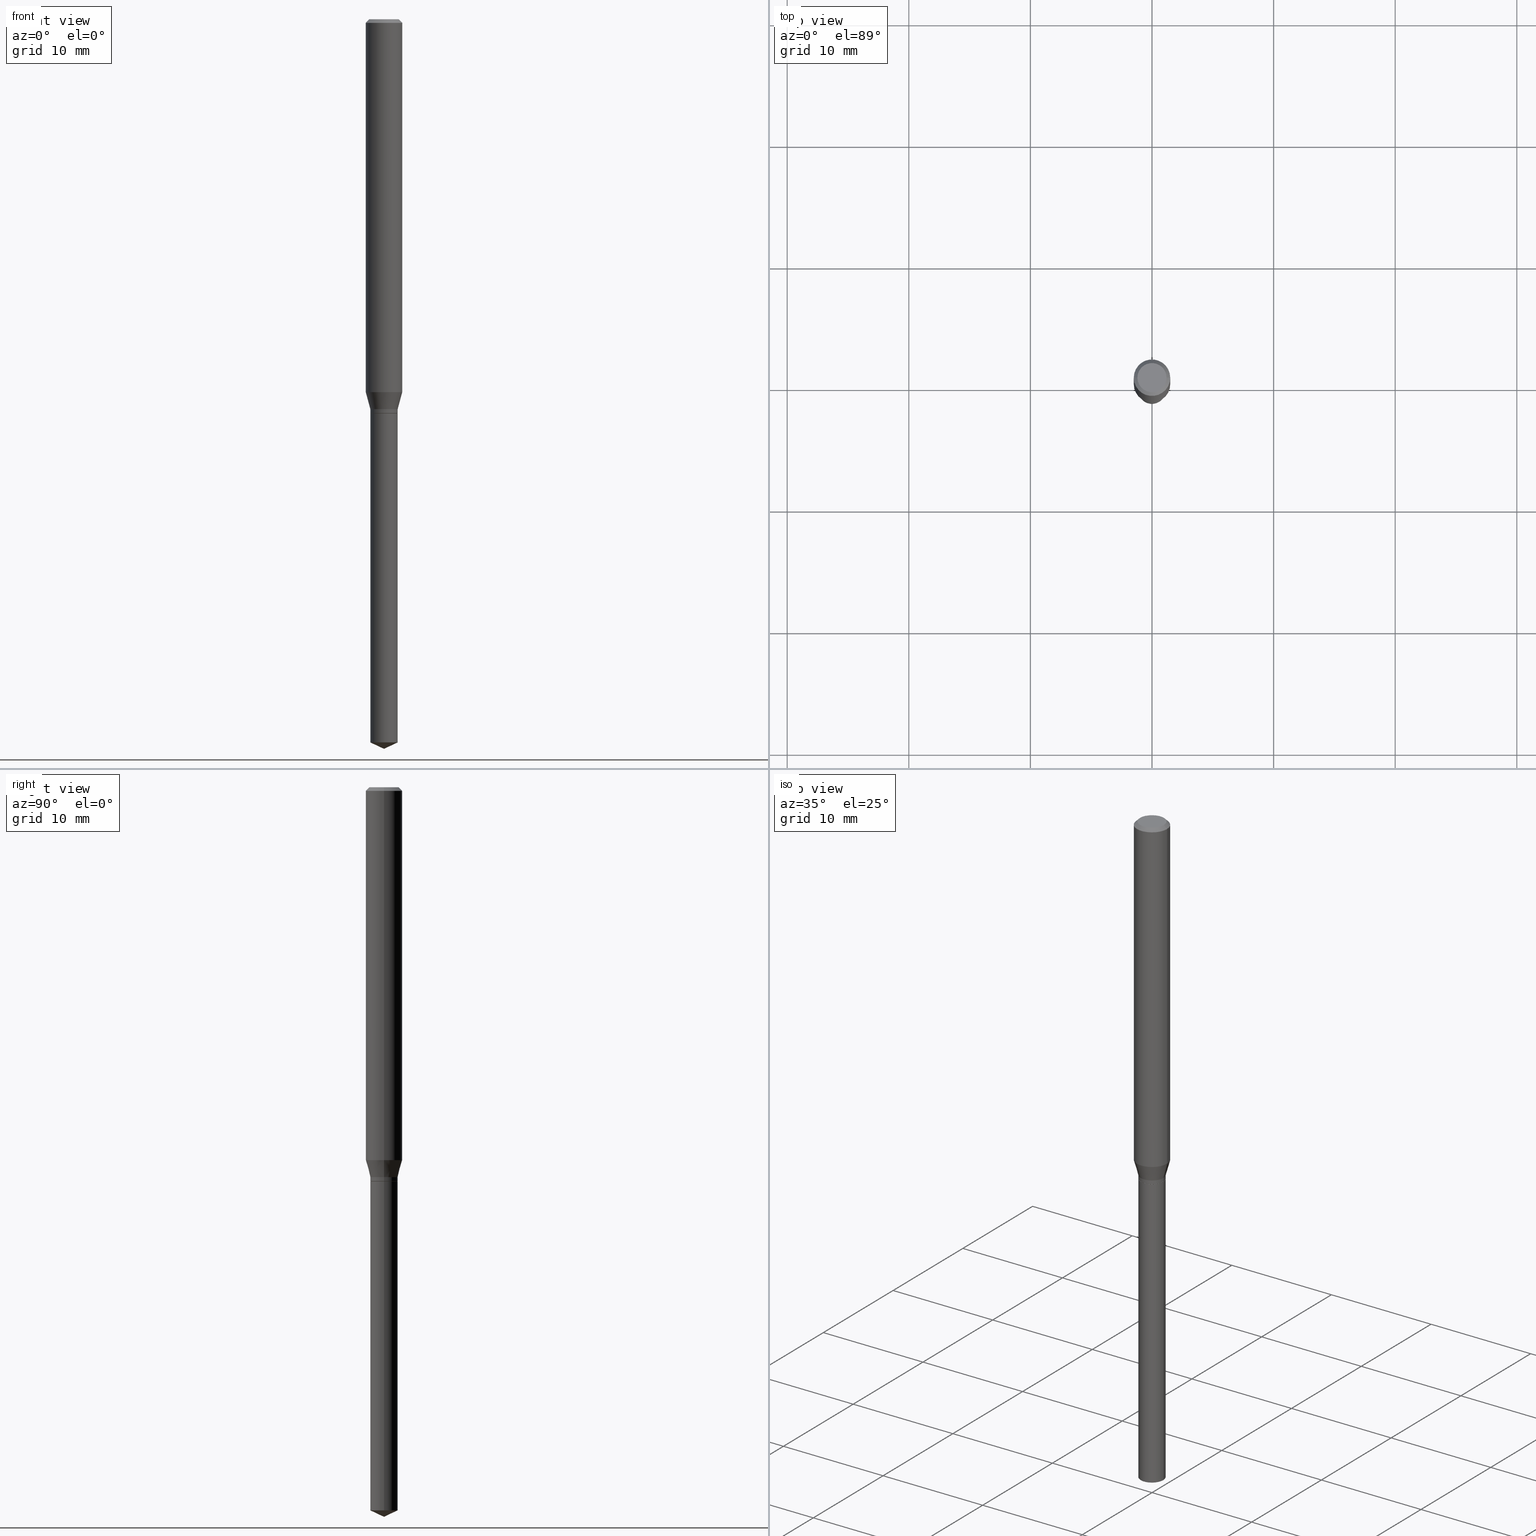
[diagram: canonical four-view strip — front | top / right | iso, engineering-drawing reading convention]
A machine part, canonical four-view strip (front | top / right | iso — engineering-drawing reading convention). The complete STEP part file that produces these views, byte-faithful:
ISO-10303-21;
HEADER;
FILE_DESCRIPTION (( 'STEP AP203' ),
    '1' );
FILE_NAME ('07631.STEP',
    '2024-04-24T00:04:10',
    ( '' ),
    ( '' ),
    'SwSTEP 2.0',
    'SolidWorks 2023',
    '' );
FILE_SCHEMA (( 'CONFIG_CONTROL_DESIGN' ));
ENDSEC;

DATA;
#1 = VECTOR ( 'NONE', #345, 39.37007874015748143 ) ;
#2 = DIRECTION ( 'NONE',  ( -2.445468806185136597E-29, 3.491481338843145583E-15, 1.000000000000000000 ) ) ;
#3 = CARTESIAN_POINT ( 'NONE',  ( 3.119440009169759514E-29, -4.453733595828316609E-15, -1.275599999999999845 ) ) ;
#4 = PRODUCT_RELATED_PRODUCT_CATEGORY ( 'detail', '', ( #349 ) ) ;
#5 = EDGE_CURVE ( 'NONE', #24, #148, #385, .T. ) ;
#6 = ADVANCED_BREP_SHAPE_REPRESENTATION ( '07631', ( #111, #273, #291 ), #382 ) ;
#7 = APPROVAL_ROLE ( '' ) ;
#8 = CARTESIAN_POINT ( 'NONE',  ( -0.04429999999999999910, -4.138963163886592184E-15, -1.275599999999999845 ) ) ;
#9 = CARTESIAN_POINT ( 'NONE',  ( 4.132873053354867254E-48, -5.900647395337818946E-34, -1.690012582823346072E-19 ) ) ;
#10 = DIRECTION ( 'NONE',  ( -2.445468806185136597E-29, 3.491481338843145583E-15, 1.000000000000000000 ) ) ;
#11 = ORIENTED_EDGE ( 'NONE', *, *, #350, .F. ) ;
#12 = VECTOR ( 'NONE', #152, 39.37007874015748143 ) ;
#13 = FACE_OUTER_BOUND ( 'NONE', #170, .T. ) ;
#14 =( LENGTH_UNIT ( ) NAMED_UNIT ( * ) SI_UNIT ( $, .METRE. ) );
#15 = COORDINATED_UNIVERSAL_TIME_OFFSET ( 5, 0, .BEHIND. ) ;
#16 = CARTESIAN_POINT ( 'NONE',  ( 2.952297720010632221E-29, -4.215098704205641953E-15, -1.207252250588358500 ) ) ;
#17 = VERTEX_POINT ( 'NONE', #387 ) ;
#18 = ADVANCED_FACE ( 'NONE', ( #187 ), #44, .T. ) ;
#19 = DIRECTION ( 'NONE',  ( -1.000000000000000000, 6.982962677686266711E-15, 0.000000000000000000 ) ) ;
#20 = LINE ( 'NONE', #162, #130 ) ;
#21 = ADVANCED_FACE ( 'NONE', ( #465 ), #48, .T. ) ;
#22 = CIRCLE ( 'NONE', #185, 0.04430000000000001992 ) ;
#23 = DIRECTION ( 'NONE',  ( 1.000000000000000000, -6.982962677686265922E-15, 4.876176775795935793E-29 ) ) ;
#24 = VERTEX_POINT ( 'NONE', #471 ) ;
#25 = ADVANCED_FACE ( 'NONE', ( #13 ), #129, .T. ) ;
#26 = PLANE ( 'NONE',  #262 ) ;
#27 = ORIENTED_EDGE ( 'NONE', *, *, #114, .T. ) ;
#28 = DIRECTION ( 'NONE',  ( 2.438088387897960049E-29, -3.491481338843145188E-15, -1.000000000000000000 ) ) ;
#29 = ORIENTED_EDGE ( 'NONE', *, *, #140, .T. ) ;
#30 = AXIS2_PLACEMENT_3D ( 'NONE', #106, #250, #408 ) ;
#31 = CARTESIAN_POINT ( 'NONE',  ( -9.050161304213721862E-28, 1.292123180114298356E-13, 37.00787874015748002 ) ) ;
#32 = ORIENTED_EDGE ( 'NONE', *, *, #114, .F. ) ;
#33 = APPLICATION_PROTOCOL_DEFINITION ( 'international standard', 'config_control_design', 1994, #100 ) ;
#34 = CARTESIAN_POINT ( 'NONE',  ( 0.05905000000000007465, -4.123439461173745750E-16, 2.879382386107504074E-30 ) ) ;
#35 = ORIENTED_EDGE ( 'NONE', *, *, #228, .F. ) ;
#36 = AXIS2_PLACEMENT_3D ( 'NONE', #432, #236, #403 ) ;
#37 = DIRECTION ( 'NONE',  ( -2.445468806185136597E-29, 3.491481338843145583E-15, 1.000000000000000000 ) ) ;
#38 = EDGE_CURVE ( 'NONE', #213, #24, #260, .T. ) ;
#39 = AXIS2_PLACEMENT_3D ( 'NONE', #70, #62, #216 ) ;
#40 = FACE_OUTER_BOUND ( 'NONE', #417, .T. ) ;
#41 = DIRECTION ( 'NONE',  ( -2.445468806185136877E-29, 3.491481338843145188E-15, 1.000000000000000000 ) ) ;
#42 = CC_DESIGN_DATE_AND_TIME_ASSIGNMENT ( #78, #397, ( #110 ) ) ;
#43 = CARTESIAN_POINT ( 'NONE',  ( 5.726169315108353450E-29, -8.175452189858550487E-15, -2.341542570743733176 ) ) ;
#44 = CONICAL_SURFACE ( 'NONE', #427, 0.05904999999999999832, 0.7853981633974452814 ) ;
#45 = AXIS2_PLACEMENT_3D ( 'NONE', #365, #257, #410 ) ;
#46 = CARTESIAN_POINT ( 'NONE',  ( 0.05905000000000015098, -4.627442650323016873E-15, -1.207252250588358500 ) ) ;
#47 = ORIENTED_EDGE ( 'NONE', *, *, #112, .T. ) ;
#48 = CYLINDRICAL_SURFACE ( 'NONE', #183, 0.05905000000000007465 ) ;
#49 = CLOSED_SHELL ( 'NONE', ( #252, #18, #21, #178, #25, #105, #342, #376, #53, #474, #215, #324 ) ) ;
#50 = CONICAL_SURFACE ( 'NONE', #79, 84.42940631927322670, 1.134464013796310899 ) ;
#51 = LOCAL_TIME ( 20, 4, 10.00000000000000000, #431 ) ;
#52 = DIRECTION ( 'NONE',  ( 0.2588190451025211281, 1.565188264969622954E-15, 0.9659258262890679791 ) ) ;
#53 = ADVANCED_FACE ( 'NONE', ( #392 ), #461, .T. ) ;
#54 = CALENDAR_DATE ( 2024, 23, 4 ) ;
#55 = CARTESIAN_POINT ( 'NONE',  ( 2.888098660104663766E-31, -4.123439461173779647E-17, -0.01181000000000007044 ) ) ;
#56 = CARTESIAN_POINT ( 'NONE',  ( 3.119440009169759514E-29, -4.453733595828316609E-15, -1.275599999999999845 ) ) ;
#57 = VECTOR ( 'NONE', #238, 39.37007874015748854 ) ;
#58 = CARTESIAN_POINT ( 'NONE',  ( 5.776686413970529753E-29, -8.247577218615279626E-15, -2.362200000000000077 ) ) ;
#59 = CIRCLE ( 'NONE', #407, 0.04429999999999999910 ) ;
#60 = CIRCLE ( 'NONE', #373, 0.04724000000000000421 ) ;
#61 = ORIENTED_EDGE ( 'NONE', *, *, #287, .F. ) ;
#62 = DIRECTION ( 'NONE',  ( -2.445468806185136597E-29, 3.491481338843145583E-15, 1.000000000000000000 ) ) ;
#63 = VERTEX_POINT ( 'NONE', #123 ) ;
#64 = DIRECTION ( 'NONE',  ( -2.445468806185136597E-29, 3.491481338843145583E-15, 1.000000000000000000 ) ) ;
#65 = ORIENTED_EDGE ( 'NONE', *, *, #156, .T. ) ;
#66 = AXIS2_PLACEMENT_3D ( 'NONE', #16, #10, #360 ) ;
#67 = LINE ( 'NONE', #374, #389 ) ;
#68 = VERTEX_POINT ( 'NONE', #90 ) ;
#69 = AXIS2_PLACEMENT_3D ( 'NONE', #3, #457, #115 ) ;
#70 = CARTESIAN_POINT ( 'NONE',  ( 3.119440009169759514E-29, -4.453733595828316609E-15, -1.275599999999999845 ) ) ;
#71 = ORIENTED_EDGE ( 'NONE', *, *, #414, .F. ) ;
#72 = PERSON ( 'UNSPECIFIED', 'UNSPECIFIED', 'UNSPECIFIED', ('UNSPECIFIED'), ('UNSPECIFIED'), ('UNSPECIFIED') ) ;
#73 = LINE ( 'NONE', #184, #1 ) ;
#74 = DIRECTION ( 'NONE',  ( 1.000000000000000000, -6.982962677686266711E-15, 0.000000000000000000 ) ) ;
#75 = CC_DESIGN_PERSON_AND_ORGANIZATION_ASSIGNMENT ( #352, #388, ( #110 ) ) ;
#76 = CARTESIAN_POINT ( 'NONE',  ( 3.118217274766668394E-29, -4.451987855158895895E-15, -1.275100000000000344 ) ) ;
#77 = CARTESIAN_POINT ( 'NONE',  ( 2.888098660104663766E-31, -4.123439461173779647E-17, -0.01181000000000007044 ) ) ;
#78 = DATE_AND_TIME ( #237, #390 ) ;
#79 = AXIS2_PLACEMENT_3D ( 'NONE', #31, #377, #168 ) ;
#80 = LOCAL_TIME ( 20, 4, 10.00000000000000000, #456 ) ;
#81 = DIRECTION ( 'NONE',  ( -2.445468806185136597E-29, 3.491481338843145583E-15, 1.000000000000000000 ) ) ;
#82 = DATE_AND_TIME ( #434, #51 ) ;
#83 = DIRECTION ( 'NONE',  ( 1.000000000000000000, -6.982962677686269077E-15, 0.000000000000000000 ) ) ;
#84 = SHAPE_DEFINITION_REPRESENTATION ( #107, #6 ) ;
#85 = CARTESIAN_POINT ( 'NONE',  ( 5.726169315108353450E-29, -8.175452189858550487E-15, -2.341542570743733176 ) ) ;
#86 = CC_DESIGN_DATE_AND_TIME_ASSIGNMENT ( #82, #280, ( #173 ) ) ;
#87 = DIRECTION ( 'NONE',  ( 0.000000000000000000, 0.000000000000000000, 1.000000000000000000 ) ) ;
#88 = PERSON_AND_ORGANIZATION ( #72, #401 ) ;
#89 = CONICAL_SURFACE ( 'NONE', #233, 0.04430000000000001298, 0.2617993877991498519 ) ;
#90 = CARTESIAN_POINT ( 'NONE',  ( -0.04430000000000001992, -4.114871942648574646E-15, -1.275100000000000344 ) ) ;
#91 = EDGE_CURVE ( 'NONE', #63, #148, #396, .T. ) ;
#92 = CARTESIAN_POINT ( 'NONE',  ( -0.05904999999999999832, -1.708591063942349362E-15, -0.01181000000000007044 ) ) ;
#93 =( CONVERSION_BASED_UNIT ( 'INCH', #442 ) LENGTH_UNIT ( ) NAMED_UNIT ( #421 ) );
#94 = VERTEX_POINT ( 'NONE', #435 ) ;
#95 = DIRECTION ( 'NONE',  ( -2.445468806185136877E-29, 3.491481338843145188E-15, 1.000000000000000000 ) ) ;
#96 = ORIENTED_EDGE ( 'NONE', *, *, #140, .F. ) ;
#97 = AXIS2_PLACEMENT_3D ( 'NONE', #165, #196, #441 ) ;
#98 = DIRECTION ( 'NONE',  ( -2.445468806185136597E-29, 3.491481338843145583E-15, 1.000000000000000000 ) ) ;
#99 = VERTEX_POINT ( 'NONE', #92 ) ;
#100 = APPLICATION_CONTEXT ( 'configuration controlled 3d designs of mechanical parts and assemblies' ) ;
#101 = LINE ( 'NONE', #58, #351 ) ;
#102 = ORIENTED_EDGE ( 'NONE', *, *, #112, .F. ) ;
#103 = CARTESIAN_POINT ( 'NONE',  ( -0.05905000000000015098, -3.795523218739302460E-15, -1.207252250588358500 ) ) ;
#104 = VERTEX_POINT ( 'NONE', #46 ) ;
#105 = ADVANCED_FACE ( 'NONE', ( #245 ), #398, .T. ) ;
#106 = CARTESIAN_POINT ( 'NONE',  ( 3.086915274047497609E-29, -4.407296894021701459E-15, -1.262299999999999756 ) ) ;
#107 = PRODUCT_DEFINITION_SHAPE ( 'NONE', 'NONE',  #173 ) ;
#108 = ORIENTED_EDGE ( 'NONE', *, *, #309, .F. ) ;
#109 = CIRCLE ( 'NONE', #346, 0.05905000000000015098 ) ;
#110 = SECURITY_CLASSIFICATION ( '', '', #319 ) ;
#111 = MANIFOLD_SOLID_BREP ( 'Body-Move/Copy2[1]', #437 ) ;
#112 = EDGE_CURVE ( 'NONE', #366, #104, #354, .T. ) ;
#113 = DIRECTION ( 'NONE',  ( 1.000000000000000000, -6.982962677686267499E-15, 0.000000000000000000 ) ) ;
#114 = EDGE_CURVE ( 'NONE', #220, #104, #214, .T. ) ;
#115 = DIRECTION ( 'NONE',  ( 1.000000000000000000, -6.982962677686257244E-15, 0.000000000000000000 ) ) ;
#116 = ORIENTED_EDGE ( 'NONE', *, *, #350, .T. ) ;
#117 = AXIS2_PLACEMENT_3D ( 'NONE', #55, #439, #19 ) ;
#118 = LINE ( 'NONE', #34, #12 ) ;
#119 = AXIS2_PLACEMENT_3D ( 'NONE', #261, #404, #23 ) ;
#120 = CC_DESIGN_APPROVAL ( #235, ( #110 ) ) ;
#121 = DIRECTION ( 'NONE',  ( -1.000000000000000000, 6.982962677686266711E-15, 0.000000000000000000 ) ) ;
#122 = PERSON_AND_ORGANIZATION ( #72, #401 ) ;
#123 = CARTESIAN_POINT ( 'NONE',  ( 0.04429999999999999910, -4.763078842449818086E-15, -1.275599999999999845 ) ) ;
#124 = AXIS2_PLACEMENT_3D ( 'NONE', #323, #204, #473 ) ;
#125 = EDGE_CURVE ( 'NONE', #220, #99, #394, .T. ) ;
#126 = LINE ( 'NONE', #357, #232 ) ;
#127 = PERSON_AND_ORGANIZATION ( #72, #401 ) ;
#128 = FACE_OUTER_BOUND ( 'NONE', #229, .T. ) ;
#129 = CYLINDRICAL_SURFACE ( 'NONE', #488, 0.04430000000000001992 ) ;
#130 = VECTOR ( 'NONE', #320, 39.37007874015748143 ) ;
#131 = CARTESIAN_POINT ( 'NONE',  ( 0.04430000000000001992, -3.093452466215017723E-16, 2.160146311677600784E-30 ) ) ;
#132 = EDGE_LOOP ( 'NONE', ( #172, #413, #65, #293 ) ) ;
#133 = LINE ( 'NONE', #255, #242 ) ;
#134 = DIRECTION ( 'NONE',  ( -2.445468806185136597E-29, 3.491481338843145583E-15, 1.000000000000000000 ) ) ;
#135 = EDGE_LOOP ( 'NONE', ( #61, #206, #449, #199 ) ) ;
#136 = EDGE_CURVE ( 'NONE', #148, #63, #191, .T. ) ;
#137 = FACE_OUTER_BOUND ( 'NONE', #251, .T. ) ;
#138 = CONICAL_SURFACE ( 'NONE', #30, 0.04430000000000001298, 0.2617993877991498519 ) ;
#139 = EDGE_LOOP ( 'NONE', ( #341, #270 ) ) ;
#140 = EDGE_CURVE ( 'NONE', #305, #24, #322, .T. ) ;
#141 = DIRECTION ( 'NONE',  ( 0.7071067811865453523, -7.319954787623248157E-15, -0.7071067811865496822 ) ) ;
#142 = VERTEX_POINT ( 'NONE', #201 ) ;
#143 = DIRECTION ( 'NONE',  ( 1.000000000000000000, -6.982962677686266711E-15, 0.000000000000000000 ) ) ;
#144 = UNCERTAINTY_MEASURE_WITH_UNIT (LENGTH_MEASURE( 1.000000000000000082E-05 ), #93, 'distance_accuracy_value', 'NONE');
#145 = EDGE_LOOP ( 'NONE', ( #197, #27, #254, #263 ) ) ;
#146 = ADVANCED_FACE ( 'NONE', ( #313 ), #362, .T. ) ;
#147 = DIRECTION ( 'NONE',  ( 1.000000000000000000, -6.982962677686269077E-15, 0.000000000000000000 ) ) ;
#148 = VERTEX_POINT ( 'NONE', #274 ) ;
#149 = AXIS2_PLACEMENT_3D ( 'NONE', #460, #188, #419 ) ;
#150 = APPROVAL_PERSON_ORGANIZATION ( #122, #329, #195 ) ;
#151 = APPROVAL_ROLE ( '' ) ;
#152 = DIRECTION ( 'NONE',  ( -2.445468806185136877E-29, 3.491481338843145188E-15, 1.000000000000000000 ) ) ;
#153 = CARTESIAN_POINT ( 'NONE',  ( -9.050161304213721862E-28, 1.292123180114298356E-13, 37.00787874015748002 ) ) ;
#154 = CIRCLE ( 'NONE', #327, 0.04430000000000001298 ) ;
#155 = CC_DESIGN_APPROVAL ( #329, ( #334 ) ) ;
#156 = EDGE_CURVE ( 'NONE', #490, #366, #430, .T. ) ;
#157 = DIRECTION ( 'NONE',  ( 1.000000000000000000, -6.982962677686266711E-15, 4.876176775795936353E-29 ) ) ;
#158 = EDGE_CURVE ( 'NONE', #142, #490, #126, .T. ) ;
#159 = AXIS2_PLACEMENT_3D ( 'NONE', #210, #98, #448 ) ;
#160 = APPROVAL_PERSON_ORGANIZATION ( #223, #337, #151 ) ;
#161 = PERSON_AND_ORGANIZATION ( #72, #401 ) ;
#162 = CARTESIAN_POINT ( 'NONE',  ( -0.04379999999999999866, -4.142515877565392294E-15, -1.275599999999999845 ) ) ;
#163 = EDGE_LOOP ( 'NONE', ( #463, #256, #35, #443 ) ) ;
#164 = EDGE_CURVE ( 'NONE', #484, #68, #20, .T. ) ;
#165 = CARTESIAN_POINT ( 'NONE',  ( 0.000000000000000000, 0.000000000000000000, 0.000000000000000000 ) ) ;
#166 = DIRECTION ( 'NONE',  ( -1.000000000000000000, 6.982962677686265922E-15, -4.876176775795935793E-29 ) ) ;
#167 = CARTESIAN_POINT ( 'NONE',  ( 0.000000000000000000, 0.000000000000000000, 0.000000000000000000 ) ) ;
#168 = DIRECTION ( 'NONE',  ( 1.000000000000000000, -6.982962677686267499E-15, 0.000000000000000000 ) ) ;
#169 = FACE_OUTER_BOUND ( 'NONE', #139, .T. ) ;
#170 = EDGE_LOOP ( 'NONE', ( #425, #406, #71, #211 ) ) ;
#171 = CARTESIAN_POINT ( 'NONE',  ( 3.119440009169759514E-29, -4.453733595828316609E-15, -1.275599999999999845 ) ) ;
#172 = ORIENTED_EDGE ( 'NONE', *, *, #321, .F. ) ;
#173 = PRODUCT_DEFINITION ( 'UNKNOWN', '', #334, #176 ) ;
#174 = DIRECTION ( 'NONE',  ( -2.445468806185136597E-29, 3.491481338843145583E-15, 1.000000000000000000 ) ) ;
#175 = CIRCLE ( 'NONE', #45, 0.05904999999999999832 ) ;
#176 = DESIGN_CONTEXT ( 'detailed design', #100, 'design' ) ;
#177 = VERTEX_POINT ( 'NONE', #469 ) ;
#178 = ADVANCED_FACE ( 'NONE', ( #128 ), #138, .T. ) ;
#179 = FACE_OUTER_BOUND ( 'NONE', #355, .T. ) ;
#180 = ORIENTED_EDGE ( 'NONE', *, *, #259, .F. ) ;
#181 = LINE ( 'NONE', #224, #303 ) ;
#182 = ORIENTED_EDGE ( 'NONE', *, *, #91, .F. ) ;
#183 = AXIS2_PLACEMENT_3D ( 'NONE', #167, #247, #157 ) ;
#184 = CARTESIAN_POINT ( 'NONE',  ( 0.04429999999999999910, -4.763078842449818086E-15, -1.275599999999999845 ) ) ;
#185 = AXIS2_PLACEMENT_3D ( 'NONE', #412, #64, #253 ) ;
#186 = DIRECTION ( 'NONE',  ( -2.445468806185136597E-29, 3.491481338843145583E-15, 1.000000000000000000 ) ) ;
#187 = FACE_OUTER_BOUND ( 'NONE', #290, .T. ) ;
#188 = DIRECTION ( 'NONE',  ( -2.445468806185136597E-29, 3.491481338843145583E-15, 1.000000000000000000 ) ) ;
#189 = MECHANICAL_CONTEXT ( 'NONE', #367, 'mechanical' ) ;
#190 = VECTOR ( 'NONE', #41, 39.37007874015748143 ) ;
#191 = CIRCLE ( 'NONE', #381, 0.04429999999999999910 ) ;
#192 = CIRCLE ( 'NONE', #159, 0.05904999999999999832 ) ;
#193 = PERSON_AND_ORGANIZATION_ROLE ( 'creator' ) ;
#194 = EDGE_CURVE ( 'NONE', #94, #17, #60, .T. ) ;
#195 = APPROVAL_ROLE ( '' ) ;
#196 = DIRECTION ( 'NONE',  ( -2.445468806185136597E-29, 3.491481338843145583E-15, 1.000000000000000000 ) ) ;
#197 = ORIENTED_EDGE ( 'NONE', *, *, #125, .F. ) ;
#198 = DIRECTION ( 'NONE',  ( -2.445468806185136597E-29, 3.491481338843145583E-15, 1.000000000000000000 ) ) ;
#199 = ORIENTED_EDGE ( 'NONE', *, *, #295, .T. ) ;
#200 = APPROVAL_STATUS ( 'not_yet_approved' ) ;
#201 = CARTESIAN_POINT ( 'NONE',  ( 0.04379999999999999866, -4.759587361110974290E-15, -1.275599999999999845 ) ) ;
#202 = ADVANCED_FACE ( 'NONE', ( #137 ), #368, .T. ) ;
#203 = DIRECTION ( 'NONE',  ( -2.445468806185136877E-29, 3.491481338843145188E-15, 1.000000000000000000 ) ) ;
#204 = DIRECTION ( 'NONE',  ( -2.445468806185136597E-29, 3.491481338843145583E-15, 1.000000000000000000 ) ) ;
#205 = AXIS2_PLACEMENT_3D ( 'NONE', #85, #81, #363 ) ;
#206 = ORIENTED_EDGE ( 'NONE', *, *, #418, .F. ) ;
#207 = AXIS2_PLACEMENT_3D ( 'NONE', #288, #134, #338 ) ;
#208 = FACE_OUTER_BOUND ( 'NONE', #266, .T. ) ;
#209 = ORIENTED_EDGE ( 'NONE', *, *, #158, .F. ) ;
#210 = CARTESIAN_POINT ( 'NONE',  ( 2.888098660104663766E-31, -4.123439461173779647E-17, -0.01181000000000007044 ) ) ;
#211 = ORIENTED_EDGE ( 'NONE', *, *, #156, .F. ) ;
#212 = CARTESIAN_POINT ( 'NONE',  ( 5.776686413970529753E-29, -8.247577218615279626E-15, -2.362200000000000077 ) ) ;
#213 = VERTEX_POINT ( 'NONE', #446 ) ;
#214 = CIRCLE ( 'NONE', #66, 0.05905000000000015098 ) ;
#215 = ADVANCED_FACE ( 'NONE', ( #292 ), #450, .F. ) ;
#216 = DIRECTION ( 'NONE',  ( 1.000000000000000000, -6.982962677686257244E-15, 0.000000000000000000 ) ) ;
#217 = CIRCLE ( 'NONE', #225, 0.04430000000000001298 ) ;
#218 = ORIENTED_EDGE ( 'NONE', *, *, #38, .T. ) ;
#219 = DIRECTION ( 'NONE',  ( 0.9063077870366484934, -4.853149677051359068E-15, 0.4226182617407023834 ) ) ;
#220 = VERTEX_POINT ( 'NONE', #103 ) ;
#221 = CALENDAR_DATE ( 2024, 23, 4 ) ;
#222 = DIRECTION ( 'NONE',  ( -2.445468806185136597E-29, 3.491481338843145583E-15, 1.000000000000000000 ) ) ;
#223 = PERSON_AND_ORGANIZATION ( #72, #401 ) ;
#224 = CARTESIAN_POINT ( 'NONE',  ( -0.05904999999999999832, 3.711095515056362547E-16, -0.01181000000000007044 ) ) ;
#225 = AXIS2_PLACEMENT_3D ( 'NONE', #307, #37, #74 ) ;
#226 = ORIENTED_EDGE ( 'NONE', *, *, #228, .T. ) ;
#227 = CARTESIAN_POINT ( 'NONE',  ( 0.000000000000000000, 0.000000000000000000, 0.000000000000000000 ) ) ;
#228 = EDGE_CURVE ( 'NONE', #459, #99, #192, .T. ) ;
#229 = EDGE_LOOP ( 'NONE', ( #331, #339, #108, #102 ) ) ;
#230 = EDGE_CURVE ( 'NONE', #177, #366, #154, .T. ) ;
#231 = APPROVAL_DATE_TIME ( #391, #235 ) ;
#232 = VECTOR ( 'NONE', #276, 39.37007874015748143 ) ;
#233 = AXIS2_PLACEMENT_3D ( 'NONE', #458, #267, #302 ) ;
#234 = PERSON_AND_ORGANIZATION ( #72, #401 ) ;
#235 = APPROVAL ( #312, 'UNSPECIFIED' ) ;
#236 = DIRECTION ( 'NONE',  ( -2.445468806185136597E-29, 3.491481338843145583E-15, 1.000000000000000000 ) ) ;
#237 = CALENDAR_DATE ( 2024, 23, 4 ) ;
#238 = DIRECTION ( 'NONE',  ( -0.9063077870366484934, 7.915267918739014631E-15, 0.4226182617407023834 ) ) ;
#239 = CARTESIAN_POINT ( 'NONE',  ( 0.04430000000000001992, -4.761333101780398160E-15, -1.275100000000000344 ) ) ;
#240 = ORIENTED_EDGE ( 'NONE', *, *, #249, .F. ) ;
#241 = CARTESIAN_POINT ( 'NONE',  ( 0.000000000000000000, 0.000000000000000000, 0.000000000000000000 ) ) ;
#242 = VECTOR ( 'NONE', #141, 39.37007874015748143 ) ;
#243 = APPROVAL_PERSON_ORGANIZATION ( #88, #235, #7 ) ;
#244 = APPROVAL_DATE_TIME ( #468, #329 ) ;
#245 = FACE_OUTER_BOUND ( 'NONE', #132, .T. ) ;
#246 = CC_DESIGN_PERSON_AND_ORGANIZATION_ASSIGNMENT ( #161, #438, ( #334 ) ) ;
#247 = DIRECTION ( 'NONE',  ( -2.445468806185136597E-29, 3.491481338843145583E-15, 1.000000000000000000 ) ) ;
#248 = ORIENTED_EDGE ( 'NONE', *, *, #158, .T. ) ;
#249 = EDGE_CURVE ( 'NONE', #305, #213, #101, .T. ) ;
#250 = DIRECTION ( 'NONE',  ( -2.445468806185136597E-29, 3.491481338843145583E-15, 1.000000000000000000 ) ) ;
#251 = EDGE_LOOP ( 'NONE', ( #218, #369, #182, #299 ) ) ;
#252 = ADVANCED_FACE ( 'NONE', ( #208 ), #344, .T. ) ;
#253 = DIRECTION ( 'NONE',  ( 1.000000000000000000, -6.982962677686265922E-15, 0.000000000000000000 ) ) ;
#254 = ORIENTED_EDGE ( 'NONE', *, *, #361, .T. ) ;
#255 = CARTESIAN_POINT ( 'NONE',  ( 0.05904999999999999832, -4.463468013801466955E-16, -0.01181000000000007044 ) ) ;
#256 = ORIENTED_EDGE ( 'NONE', *, *, #125, .T. ) ;
#257 = DIRECTION ( 'NONE',  ( -2.445468806185136597E-29, 3.491481338843145583E-15, 1.000000000000000000 ) ) ;
#258 = ORIENTED_EDGE ( 'NONE', *, *, #249, .T. ) ;
#259 = EDGE_CURVE ( 'NONE', #484, #142, #475, .T. ) ;
#260 = CIRCLE ( 'NONE', #205, 0.04429999999999999910 ) ;
#261 = CARTESIAN_POINT ( 'NONE',  ( 3.119440009169759514E-29, -4.453733595828316609E-15, -1.275599999999999845 ) ) ;
#262 = AXIS2_PLACEMENT_3D ( 'NONE', #171, #28, #481 ) ;
#263 = ORIENTED_EDGE ( 'NONE', *, *, #295, .F. ) ;
#264 = CARTESIAN_POINT ( 'NONE',  ( 0.04430000000000001298, -4.716642140643203724E-15, -1.262299999999999756 ) ) ;
#265 = DIRECTION ( 'NONE',  ( -0.7071067811865453523, 2.468850131082234184E-15, -0.7071067811865496822 ) ) ;
#266 = EDGE_LOOP ( 'NONE', ( #116, #333, #378, #209 ) ) ;
#267 = DIRECTION ( 'NONE',  ( -2.445468806185136597E-29, 3.491481338843145583E-15, 1.000000000000000000 ) ) ;
#268 = ADVANCED_FACE ( 'NONE', ( #169 ), #26, .F. ) ;
#269 = CONICAL_SURFACE ( 'NONE', #316, 84.42940631927322670, 1.134464013796310899 ) ;
#270 = ORIENTED_EDGE ( 'NONE', *, *, #136, .T. ) ;
#271 = ADVANCED_FACE ( 'NONE', ( #330 ), #50, .T. ) ;
#272 = COORDINATED_UNIVERSAL_TIME_OFFSET ( 5, 0, .BEHIND. ) ;
#273 = MANIFOLD_SOLID_BREP ( 'Body-Move/Copy2[2]', #49 ) ;
#274 = CARTESIAN_POINT ( 'NONE',  ( -0.04429999999999999910, -5.999822460901709912E-15, -1.275599999999999845 ) ) ;
#275 = CIRCLE ( 'NONE', #283, 0.04430000000000001992 ) ;
#276 = DIRECTION ( 'NONE',  ( 0.7071067811868312347, -2.468850131085228700E-15, 0.7071067811862637997 ) ) ;
#277 = PERSON_AND_ORGANIZATION_ROLE ( 'creator' ) ;
#278 = DIRECTION ( 'NONE',  ( -2.445468806185136597E-29, 3.491481338843145583E-15, 1.000000000000000000 ) ) ;
#279 = CARTESIAN_POINT ( 'NONE',  ( 0.000000000000000000, 0.000000000000000000, 0.000000000000000000 ) ) ;
#280 = DATE_TIME_ROLE ( 'creation_date' ) ;
#281 = DIRECTION ( 'NONE',  ( 1.000000000000000000, -6.982962677686267499E-15, 4.876176775795936353E-29 ) ) ;
#282 =( NAMED_UNIT ( * ) PLANE_ANGLE_UNIT ( ) SI_UNIT ( $, .RADIAN. ) );
#283 = AXIS2_PLACEMENT_3D ( 'NONE', #76, #2, #386 ) ;
#284 = DIRECTION ( 'NONE',  ( -2.445468806185136877E-29, 3.491481338843145188E-15, 1.000000000000000000 ) ) ;
#285 = FACE_OUTER_BOUND ( 'NONE', #359, .T. ) ;
#286 = ORIENTED_EDGE ( 'NONE', *, *, #470, .F. ) ;
#287 = EDGE_CURVE ( 'NONE', #94, #459, #133, .T. ) ;
#288 = CARTESIAN_POINT ( 'NONE',  ( 3.119440009169759514E-29, -4.453733595828316609E-15, -1.275599999999999845 ) ) ;
#289 = DIRECTION ( 'NONE',  ( -2.445468806185136597E-29, 3.491481338843145583E-15, 1.000000000000000000 ) ) ;
#290 = EDGE_LOOP ( 'NONE', ( #393, #296, #226, #482 ) ) ;
#291 = AXIS2_PLACEMENT_3D ( 'NONE', #279, #87, #325 ) ;
#292 = FACE_OUTER_BOUND ( 'NONE', #353, .T. ) ;
#293 = ORIENTED_EDGE ( 'NONE', *, *, #230, .F. ) ;
#294 = DIRECTION ( 'NONE',  ( -2.445468806185136597E-29, 3.491481338843145583E-15, 1.000000000000000000 ) ) ;
#295 = EDGE_CURVE ( 'NONE', #99, #459, #175, .T. ) ;
#296 = ORIENTED_EDGE ( 'NONE', *, *, #287, .T. ) ;
#297 = PERSON_AND_ORGANIZATION_ROLE ( 'design_owner' ) ;
#298 = DIRECTION ( 'NONE',  ( -2.445468806185136597E-29, 3.491481338843145583E-15, 1.000000000000000000 ) ) ;
#299 = ORIENTED_EDGE ( 'NONE', *, *, #452, .F. ) ;
#300 = EDGE_CURVE ( 'NONE', #68, #490, #22, .T. ) ;
#301 = APPROVAL_STATUS ( 'not_yet_approved' ) ;
#302 = DIRECTION ( 'NONE',  ( 1.000000000000000000, -6.982962677686266711E-15, 0.000000000000000000 ) ) ;
#303 = VECTOR ( 'NONE', #265, 39.37007874015748143 ) ;
#304 = LOCAL_TIME ( 20, 4, 10.00000000000000000, #15 ) ;
#305 = VERTEX_POINT ( 'NONE', #212 ) ;
#306 = LINE ( 'NONE', #489, #429 ) ;
#307 = CARTESIAN_POINT ( 'NONE',  ( 3.086915274047497609E-29, -4.407296894021701459E-15, -1.262299999999999756 ) ) ;
#308 = VECTOR ( 'NONE', #52, 39.37007874015748854 ) ;
#309 = EDGE_CURVE ( 'NONE', #104, #220, #109, .T. ) ;
#310 = DIRECTION ( 'NONE',  ( 2.445468806185136597E-29, -3.491481338843145583E-15, -1.000000000000000000 ) ) ;
#311 = CC_DESIGN_APPROVAL ( #337, ( #173 ) ) ;
#312 = APPROVAL_STATUS ( 'not_yet_approved' ) ;
#313 = FACE_OUTER_BOUND ( 'NONE', #479, .T. ) ;
#314 = COORDINATED_UNIVERSAL_TIME_OFFSET ( 5, 0, .BEHIND. ) ;
#315 = CARTESIAN_POINT ( 'NONE',  ( -0.05905000000000007465, 4.195754854663396902E-16, -2.904631170795525395E-30 ) ) ;
#316 = AXIS2_PLACEMENT_3D ( 'NONE', #153, #186, #113 ) ;
#317 = PLANE ( 'NONE',  #466 ) ;
#318 = LOCAL_TIME ( 20, 4, 10.00000000000000000, #272 ) ;
#319 = SECURITY_CLASSIFICATION_LEVEL ( 'unclassified' ) ;
#320 = DIRECTION ( 'NONE',  ( -0.7071067811868312347, 7.493145998871379679E-15, 0.7071067811862637997 ) ) ;
#321 = EDGE_CURVE ( 'NONE', #68, #177, #67, .T. ) ;
#322 = LINE ( 'NONE', #467, #57 ) ;
#323 = CARTESIAN_POINT ( 'NONE',  ( 3.119440009169759514E-29, -4.453733595828316609E-15, -1.275599999999999845 ) ) ;
#324 = ADVANCED_FACE ( 'NONE', ( #179 ), #462, .T. ) ;
#325 = DIRECTION ( 'NONE',  ( 1.000000000000000000, 0.000000000000000000, 0.000000000000000000 ) ) ;
#326 = ORIENTED_EDGE ( 'NONE', *, *, #418, .T. ) ;
#327 = AXIS2_PLACEMENT_3D ( 'NONE', #416, #174, #143 ) ;
#328 = DIRECTION ( 'NONE',  ( 1.000000000000000000, -6.982962677686269077E-15, 0.000000000000000000 ) ) ;
#329 = APPROVAL ( #200, 'UNSPECIFIED' ) ;
#330 = FACE_OUTER_BOUND ( 'NONE', #486, .T. ) ;
#331 = ORIENTED_EDGE ( 'NONE', *, *, #414, .T. ) ;
#332 = DIRECTION ( 'NONE',  ( 1.000000000000000000, -6.982962677686266711E-15, 4.876185090822587894E-29 ) ) ;
#333 = ORIENTED_EDGE ( 'NONE', *, *, #164, .T. ) ;
#334 = PRODUCT_DEFINITION_FORMATION_WITH_SPECIFIED_SOURCE ( 'ANY', '', #349, .NOT_KNOWN. ) ;
#335 = DIRECTION ( 'NONE',  ( -2.445468806185136597E-29, 3.491481338843145583E-15, 1.000000000000000000 ) ) ;
#336 = EDGE_LOOP ( 'NONE', ( #375, #371, #47, #32 ) ) ;
#337 = APPROVAL ( #301, 'UNSPECIFIED' ) ;
#338 = DIRECTION ( 'NONE',  ( 1.000000000000000000, -6.982962677686257244E-15, 0.000000000000000000 ) ) ;
#339 = ORIENTED_EDGE ( 'NONE', *, *, #445, .T. ) ;
#340 = DIRECTION ( 'NONE',  ( -2.445468806185136597E-29, 3.491481338843145583E-15, 1.000000000000000000 ) ) ;
#341 = ORIENTED_EDGE ( 'NONE', *, *, #91, .T. ) ;
#342 = ADVANCED_FACE ( 'NONE', ( #485 ), #89, .T. ) ;
#343 = VECTOR ( 'NONE', #203, 39.37007874015748143 ) ;
#344 = CONICAL_SURFACE ( 'NONE', #39, 0.04379999999999999866, 0.7853981633978495136 ) ;
#345 = DIRECTION ( 'NONE',  ( -2.445468806185136877E-29, 3.491481338843145188E-15, 1.000000000000000000 ) ) ;
#346 = AXIS2_PLACEMENT_3D ( 'NONE', #478, #335, #370 ) ;
#347 = ORIENTED_EDGE ( 'NONE', *, *, #164, .F. ) ;
#348 = DIRECTION ( 'NONE',  ( 1.000000000000000000, -6.982962677686266711E-15, 4.876176775795936353E-29 ) ) ;
#349 = PRODUCT ( '07631', '07631', '', ( #189 ) ) ;
#350 = EDGE_CURVE ( 'NONE', #142, #484, #455, .T. ) ;
#351 = VECTOR ( 'NONE', #219, 39.37007874015748854 ) ;
#352 = PERSON_AND_ORGANIZATION ( #72, #401 ) ;
#353 = EDGE_LOOP ( 'NONE', ( #11, #180 ) ) ;
#354 = LINE ( 'NONE', #402, #308 ) ;
#355 = EDGE_LOOP ( 'NONE', ( #347, #364, #248, #411 ) ) ;
#356 = ADVANCED_FACE ( 'NONE', ( #40 ), #269, .T. ) ;
#357 = CARTESIAN_POINT ( 'NONE',  ( 0.04379999999999999866, -4.759587361110974290E-15, -1.275599999999999845 ) ) ;
#358 = AXIS2_PLACEMENT_3D ( 'NONE', #227, #222, #348 ) ;
#359 = EDGE_LOOP ( 'NONE', ( #326, #422 ) ) ;
#360 = DIRECTION ( 'NONE',  ( 1.000000000000000000, -6.982962677686262766E-15, 0.000000000000000000 ) ) ;
#361 = EDGE_CURVE ( 'NONE', #104, #459, #118, .T. ) ;
#362 = CYLINDRICAL_SURFACE ( 'NONE', #124, 0.04429999999999999910 ) ;
#363 = DIRECTION ( 'NONE',  ( 1.000000000000000000, -6.982962677686269077E-15, 0.000000000000000000 ) ) ;
#364 = ORIENTED_EDGE ( 'NONE', *, *, #259, .T. ) ;
#365 = CARTESIAN_POINT ( 'NONE',  ( 2.888098660104663766E-31, -4.123439461173779647E-17, -0.01181000000000007044 ) ) ;
#366 = VERTEX_POINT ( 'NONE', #264 ) ;
#367 = APPLICATION_CONTEXT ( 'configuration controlled 3d designs of mechanical parts and assemblies' ) ;
#368 = CYLINDRICAL_SURFACE ( 'NONE', #415, 0.04429999999999999910 ) ;
#369 = ORIENTED_EDGE ( 'NONE', *, *, #5, .T. ) ;
#370 = DIRECTION ( 'NONE',  ( 1.000000000000000000, -6.982962677686262766E-15, 0.000000000000000000 ) ) ;
#371 = ORIENTED_EDGE ( 'NONE', *, *, #230, .T. ) ;
#372 = EDGE_CURVE ( 'NONE', #17, #99, #181, .T. ) ;
#373 = AXIS2_PLACEMENT_3D ( 'NONE', #453, #289, #332 ) ;
#374 = CARTESIAN_POINT ( 'NONE',  ( -0.04430000000000001992, 3.147704319417245239E-16, -2.179088244982924535E-30 ) ) ;
#375 = ORIENTED_EDGE ( 'NONE', *, *, #445, .F. ) ;
#376 = ADVANCED_FACE ( 'NONE', ( #380 ), #420, .T. ) ;
#377 = DIRECTION ( 'NONE',  ( -2.445468806185136597E-29, 3.491481338843145583E-15, 1.000000000000000000 ) ) ;
#378 = ORIENTED_EDGE ( 'NONE', *, *, #464, .F. ) ;
#379 = DATE_AND_TIME ( #221, #80 ) ;
#380 = FACE_OUTER_BOUND ( 'NONE', #145, .T. ) ;
#381 = AXIS2_PLACEMENT_3D ( 'NONE', #56, #198, #83 ) ;
#382 =( GEOMETRIC_REPRESENTATION_CONTEXT ( 3 ) GLOBAL_UNCERTAINTY_ASSIGNED_CONTEXT ( ( #144 ) ) GLOBAL_UNIT_ASSIGNED_CONTEXT ( ( #93, #282, #433 ) ) REPRESENTATION_CONTEXT ( 'NONE', 'WORKASPACE' ) );
#383 = APPROVAL_DATE_TIME ( #379, #337 ) ;
#384 = DIRECTION ( 'NONE',  ( -0.2588190451025211281, 5.211531920934547886E-15, 0.9659258262890679791 ) ) ;
#385 = LINE ( 'NONE', #8, #190 ) ;
#386 = DIRECTION ( 'NONE',  ( 1.000000000000000000, -6.982962677686265922E-15, 0.000000000000000000 ) ) ;
#387 = CARTESIAN_POINT ( 'NONE',  ( -0.04724000000000000421, 3.504923541997677355E-16, -3.380025165670481712E-19 ) ) ;
#388 = PERSON_AND_ORGANIZATION_ROLE ( 'classification_officer' ) ;
#389 = VECTOR ( 'NONE', #95, 39.37007874015748143 ) ;
#390 = LOCAL_TIME ( 20, 4, 10.00000000000000000, #314 ) ;
#391 = DATE_AND_TIME ( #428, #318 ) ;
#392 = FACE_OUTER_BOUND ( 'NONE', #135, .T. ) ;
#393 = ORIENTED_EDGE ( 'NONE', *, *, #194, .F. ) ;
#394 = LINE ( 'NONE', #315, #343 ) ;
#395 = CC_DESIGN_PERSON_AND_ORGANIZATION_ASSIGNMENT ( #234, #193, ( #173 ) ) ;
#396 = CIRCLE ( 'NONE', #36, 0.04429999999999999910 ) ;
#397 = DATE_TIME_ROLE ( 'classification_date' ) ;
#398 = CYLINDRICAL_SURFACE ( 'NONE', #97, 0.04430000000000001992 ) ;
#399 = AXIS2_PLACEMENT_3D ( 'NONE', #477, #298, #483 ) ;
#400 = DIRECTION ( 'NONE',  ( 2.438088387897960049E-29, -3.491481338843145188E-15, -1.000000000000000000 ) ) ;
#401 = ORGANIZATION ( 'UNSPECIFIED', 'UNSPECIFIED', '' ) ;
#402 = CARTESIAN_POINT ( 'NONE',  ( 0.04430000000000001298, -4.716642140643203724E-15, -1.262299999999999756 ) ) ;
#403 = DIRECTION ( 'NONE',  ( 1.000000000000000000, -6.982962677686269077E-15, 0.000000000000000000 ) ) ;
#404 = DIRECTION ( 'NONE',  ( -2.438088387897960049E-29, 3.491481338843145188E-15, 1.000000000000000000 ) ) ;
#405 = VECTOR ( 'NONE', #284, 39.37007874015748143 ) ;
#406 = ORIENTED_EDGE ( 'NONE', *, *, #321, .T. ) ;
#407 = AXIS2_PLACEMENT_3D ( 'NONE', #43, #340, #147 ) ;
#408 = DIRECTION ( 'NONE',  ( 1.000000000000000000, -6.982962677686266711E-15, 0.000000000000000000 ) ) ;
#409 = ORIENTED_EDGE ( 'NONE', *, *, #452, .T. ) ;
#410 = DIRECTION ( 'NONE',  ( 1.000000000000000000, -6.982962677686266711E-15, 0.000000000000000000 ) ) ;
#411 = ORIENTED_EDGE ( 'NONE', *, *, #300, .F. ) ;
#412 = CARTESIAN_POINT ( 'NONE',  ( 3.118217274766668394E-29, -4.451987855158895895E-15, -1.275100000000000344 ) ) ;
#413 = ORIENTED_EDGE ( 'NONE', *, *, #300, .T. ) ;
#414 = EDGE_CURVE ( 'NONE', #366, #177, #217, .T. ) ;
#415 = AXIS2_PLACEMENT_3D ( 'NONE', #444, #294, #328 ) ;
#416 = CARTESIAN_POINT ( 'NONE',  ( 3.086915274047497609E-29, -4.407296894021701459E-15, -1.262299999999999756 ) ) ;
#417 = EDGE_LOOP ( 'NONE', ( #96, #258, #286 ) ) ;
#418 = EDGE_CURVE ( 'NONE', #17, #94, #440, .T. ) ;
#419 = DIRECTION ( 'NONE',  ( 1.000000000000000000, -6.982962677686266711E-15, 4.876185090822587894E-29 ) ) ;
#420 = CYLINDRICAL_SURFACE ( 'NONE', #358, 0.05905000000000007465 ) ;
#421 = DIMENSIONAL_EXPONENTS ( 1.000000000000000000, 0.000000000000000000, 0.000000000000000000, 0.000000000000000000, 0.000000000000000000, 0.000000000000000000, 0.000000000000000000 ) ;
#422 = ORIENTED_EDGE ( 'NONE', *, *, #194, .T. ) ;
#423 = CARTESIAN_POINT ( 'NONE',  ( 0.05904999999999999832, -4.535783407291118600E-16, -0.01181000000000007044 ) ) ;
#424 = CC_DESIGN_SECURITY_CLASSIFICATION ( #110, ( #334 ) ) ;
#425 = ORIENTED_EDGE ( 'NONE', *, *, #464, .T. ) ;
#426 = CC_DESIGN_PERSON_AND_ORGANIZATION_ASSIGNMENT ( #487, #297, ( #349 ) ) ;
#427 = AXIS2_PLACEMENT_3D ( 'NONE', #77, #310, #121 ) ;
#428 = CALENDAR_DATE ( 2024, 23, 4 ) ;
#429 = VECTOR ( 'NONE', #384, 39.37007874015748854 ) ;
#430 = LINE ( 'NONE', #131, #405 ) ;
#431 = COORDINATED_UNIVERSAL_TIME_OFFSET ( 5, 0, .BEHIND. ) ;
#432 = CARTESIAN_POINT ( 'NONE',  ( 3.119440009169759514E-29, -4.453733595828316609E-15, -1.275599999999999845 ) ) ;
#433 =( NAMED_UNIT ( * ) SI_UNIT ( $, .STERADIAN. ) SOLID_ANGLE_UNIT ( ) );
#434 = CALENDAR_DATE ( 2024, 23, 4 ) ;
#435 = CARTESIAN_POINT ( 'NONE',  ( 0.04724000000000000421, -3.852183633974369345E-16, -3.380025165621689721E-19 ) ) ;
#436 = APPLICATION_PROTOCOL_DEFINITION ( 'international standard', 'config_control_design', 1994, #367 ) ;
#437 = CLOSED_SHELL ( 'NONE', ( #202, #271, #356, #146, #268 ) ) ;
#438 = PERSON_AND_ORGANIZATION_ROLE ( 'design_supplier' ) ;
#439 = DIRECTION ( 'NONE',  ( 2.445468806185136597E-29, -3.491481338843145583E-15, -1.000000000000000000 ) ) ;
#440 = CIRCLE ( 'NONE', #149, 0.04724000000000000421 ) ;
#441 = DIRECTION ( 'NONE',  ( 1.000000000000000000, -6.982962677686267499E-15, 4.876176775795936353E-29 ) ) ;
#442 = LENGTH_MEASURE_WITH_UNIT ( LENGTH_MEASURE( 0.02539999999999999897 ), #14 );
#443 = ORIENTED_EDGE ( 'NONE', *, *, #361, .F. ) ;
#444 = CARTESIAN_POINT ( 'NONE',  ( 3.119440009169759514E-29, -4.453733595828316609E-15, -1.275599999999999845 ) ) ;
#445 = EDGE_CURVE ( 'NONE', #177, #220, #306, .T. ) ;
#446 = CARTESIAN_POINT ( 'NONE',  ( 0.04430000000000000604, -8.484797436480053541E-15, -2.341542570743733176 ) ) ;
#447 = ORIENTED_EDGE ( 'NONE', *, *, #38, .F. ) ;
#448 = DIRECTION ( 'NONE',  ( 1.000000000000000000, -6.982962677686266711E-15, 0.000000000000000000 ) ) ;
#449 = ORIENTED_EDGE ( 'NONE', *, *, #372, .T. ) ;
#450 = PLANE ( 'NONE',  #119 ) ;
#451 = ORIENTED_EDGE ( 'NONE', *, *, #5, .F. ) ;
#452 = EDGE_CURVE ( 'NONE', #213, #63, #73, .T. ) ;
#453 = CARTESIAN_POINT ( 'NONE',  ( 8.265746106709734507E-48, -1.180129479067563789E-33, -3.380025165646692144E-19 ) ) ;
#454 = ORIENTED_EDGE ( 'NONE', *, *, #136, .F. ) ;
#455 = CIRCLE ( 'NONE', #69, 0.04379999999999999866 ) ;
#456 = COORDINATED_UNIVERSAL_TIME_OFFSET ( 5, 0, .BEHIND. ) ;
#457 = DIRECTION ( 'NONE',  ( -2.445468806185136597E-29, 3.491481338843145583E-15, 1.000000000000000000 ) ) ;
#458 = CARTESIAN_POINT ( 'NONE',  ( 3.086915274047497609E-29, -4.407296894021701459E-15, -1.262299999999999756 ) ) ;
#459 = VERTEX_POINT ( 'NONE', #423 ) ;
#460 = CARTESIAN_POINT ( 'NONE',  ( 8.265746106709734507E-48, -1.180129479067563789E-33, -3.380025165646692144E-19 ) ) ;
#461 = CONICAL_SURFACE ( 'NONE', #117, 0.05904999999999999832, 0.7853981633974452814 ) ;
#462 = CONICAL_SURFACE ( 'NONE', #207, 0.04379999999999999866, 0.7853981633978495136 ) ;
#463 = ORIENTED_EDGE ( 'NONE', *, *, #309, .T. ) ;
#464 = EDGE_CURVE ( 'NONE', #490, #68, #275, .T. ) ;
#465 = FACE_OUTER_BOUND ( 'NONE', #163, .T. ) ;
#466 = AXIS2_PLACEMENT_3D ( 'NONE', #9, #400, #166 ) ;
#467 = CARTESIAN_POINT ( 'NONE',  ( 5.776686413970529753E-29, -8.247577218615279626E-15, -2.362200000000000077 ) ) ;
#468 = DATE_AND_TIME ( #54, #304 ) ;
#469 = CARTESIAN_POINT ( 'NONE',  ( -0.04430000000000001298, -4.114871942648574646E-15, -1.262299999999999756 ) ) ;
#470 = EDGE_CURVE ( 'NONE', #24, #213, #59, .T. ) ;
#471 = CARTESIAN_POINT ( 'NONE',  ( -0.04430000000000000604, -7.860681757916827639E-15, -2.341542570743733176 ) ) ;
#472 = CARTESIAN_POINT ( 'NONE',  ( -0.04379999999999999866, -4.139866650391281882E-15, -1.275599999999999845 ) ) ;
#473 = DIRECTION ( 'NONE',  ( 1.000000000000000000, -6.982962677686269077E-15, 0.000000000000000000 ) ) ;
#474 = ADVANCED_FACE ( 'NONE', ( #285 ), #317, .F. ) ;
#475 = CIRCLE ( 'NONE', #399, 0.04379999999999999866 ) ;
#476 = ORIENTED_EDGE ( 'NONE', *, *, #470, .T. ) ;
#477 = CARTESIAN_POINT ( 'NONE',  ( 3.119440009169759514E-29, -4.453733595828316609E-15, -1.275599999999999845 ) ) ;
#478 = CARTESIAN_POINT ( 'NONE',  ( 2.952297720010632221E-29, -4.215098704205641953E-15, -1.207252250588358500 ) ) ;
#479 = EDGE_LOOP ( 'NONE', ( #451, #476, #409, #454 ) ) ;
#480 = CC_DESIGN_PERSON_AND_ORGANIZATION_ASSIGNMENT ( #127, #277, ( #334 ) ) ;
#481 = DIRECTION ( 'NONE',  ( -1.000000000000000000, 6.982962677686265922E-15, -4.876176775795935793E-29 ) ) ;
#482 = ORIENTED_EDGE ( 'NONE', *, *, #372, .F. ) ;
#483 = DIRECTION ( 'NONE',  ( 1.000000000000000000, -6.982962677686257244E-15, 0.000000000000000000 ) ) ;
#484 = VERTEX_POINT ( 'NONE', #472 ) ;
#485 = FACE_OUTER_BOUND ( 'NONE', #336, .T. ) ;
#486 = EDGE_LOOP ( 'NONE', ( #240, #29, #447 ) ) ;
#487 = PERSON_AND_ORGANIZATION ( #72, #401 ) ;
#488 = AXIS2_PLACEMENT_3D ( 'NONE', #241, #278, #281 ) ;
#489 = CARTESIAN_POINT ( 'NONE',  ( -0.04430000000000001298, -4.092526462079977823E-15, -1.262299999999999756 ) ) ;
#490 = VERTEX_POINT ( 'NONE', #239 ) ;
ENDSEC;
END-ISO-10303-21;
